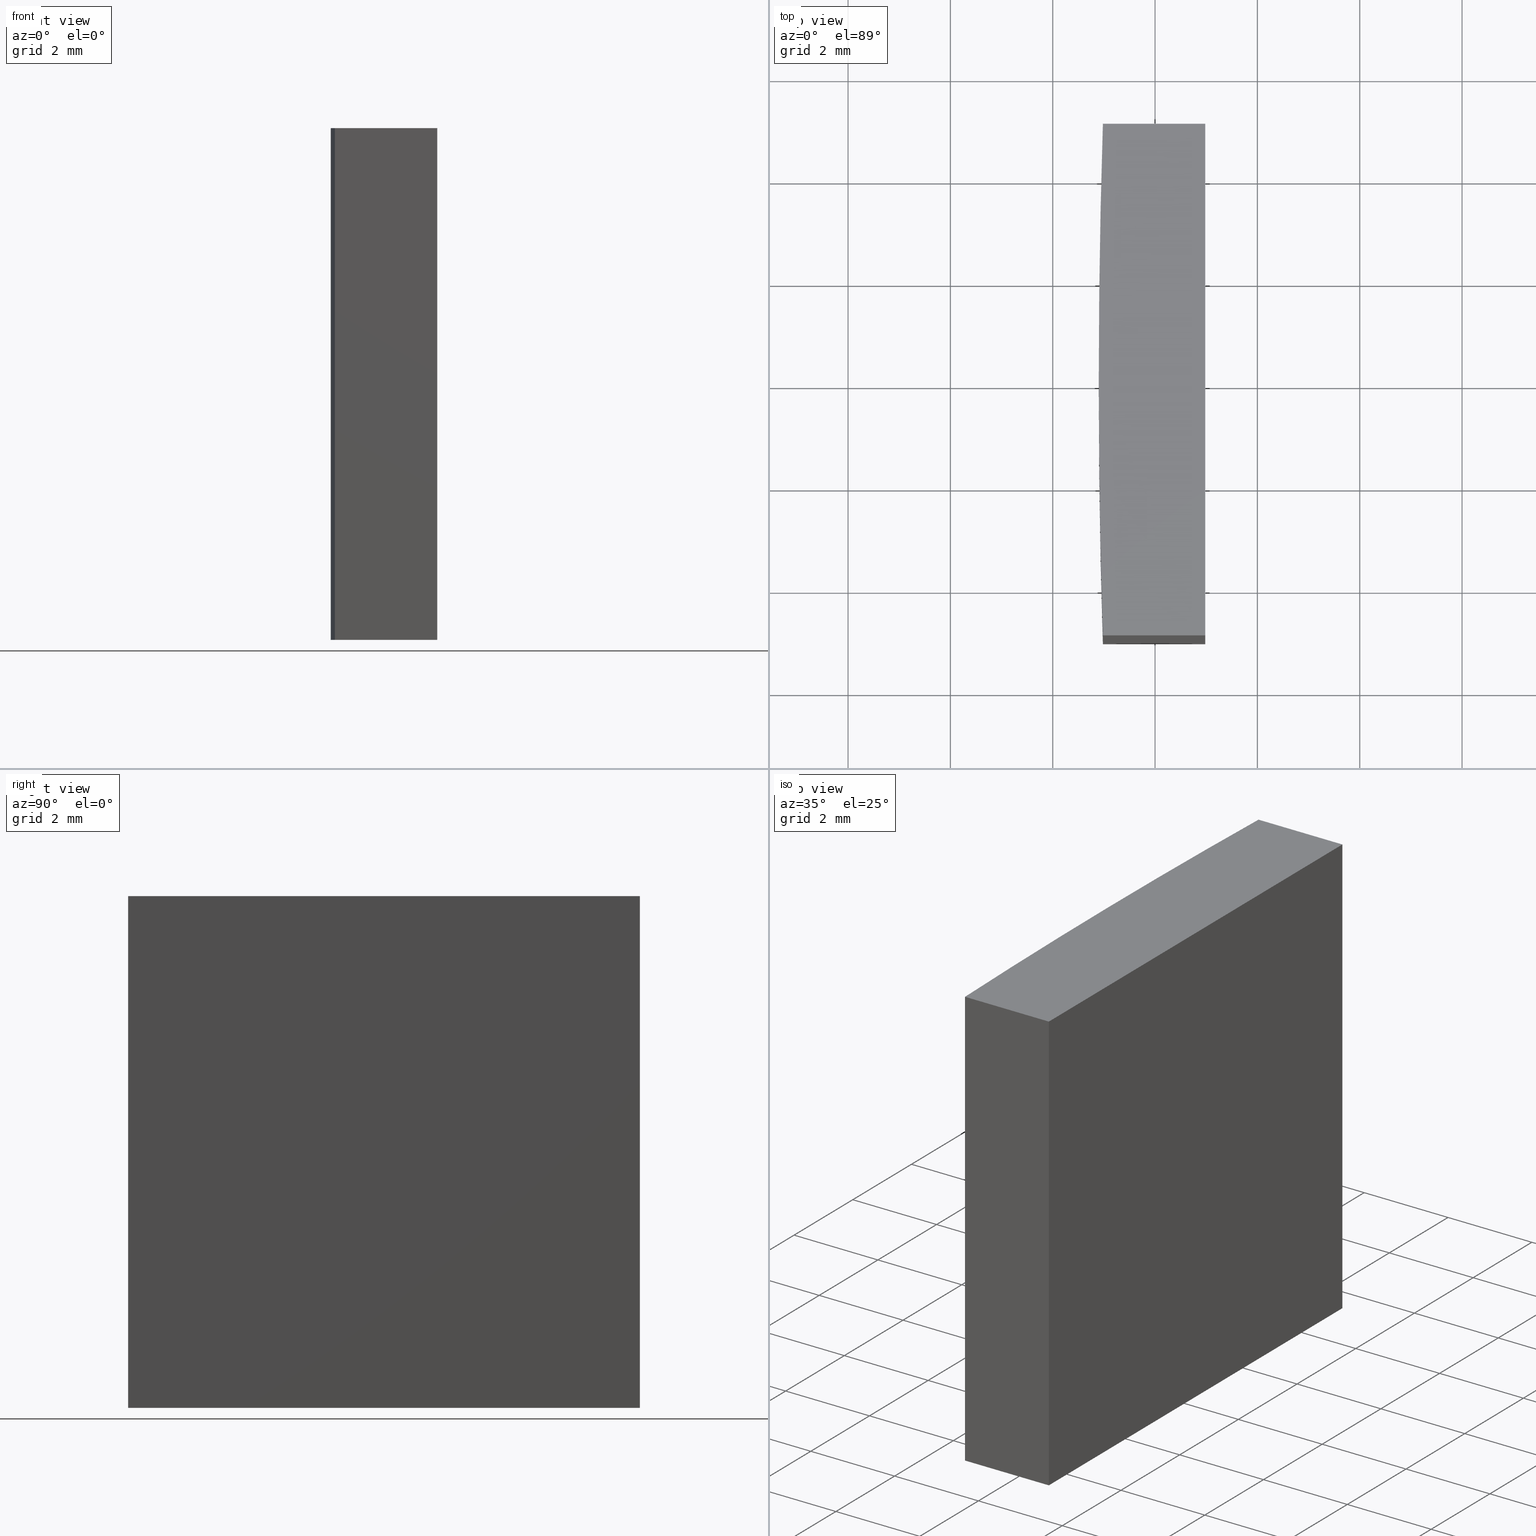
[diagram: canonical four-view strip — front | top / right | iso, engineering-drawing reading convention]
A machine part, canonical four-view strip (front | top / right | iso — engineering-drawing reading convention). The complete STEP part file that produces these views, byte-faithful:
ISO-10303-21;
HEADER;
FILE_DESCRIPTION (( 'STEP AP203' ),
    '1' );
FILE_NAME ('155526.STEP',
    '2024-05-13T03:26:28',
    ( '' ),
    ( '' ),
    'SwSTEP 2.0',
    'SolidWorks 2020',
    '' );
FILE_SCHEMA (( 'CONFIG_CONTROL_DESIGN' ));
ENDSEC;

DATA;
#1 = CYLINDRICAL_SURFACE ( 'NONE', #130, 155.0999999999999943 ) ;
#2 = DIRECTION ( 'NONE',  ( -1.000000000000000000, 0.000000000000000000, 0.000000000000000000 ) ) ;
#3 = VECTOR ( 'NONE', #138, 1000.000000000000000 ) ;
#4 = ORIENTED_EDGE ( 'NONE', *, *, #199, .T. ) ;
#5 = EDGE_CURVE ( 'NONE', #11, #133, #135, .T. ) ;
#6 = ORIENTED_EDGE ( 'NONE', *, *, #97, .F. ) ;
#7 = APPROVAL_DATE_TIME ( #192, #50 ) ;
#8 = PRODUCT_DEFINITION_FORMATION_WITH_SPECIFIED_SOURCE ( '�κ�', '', #28, .NOT_KNOWN. ) ;
#9 = PERSON_AND_ORGANIZATION ( #123, #144 ) ;
#10 = CC_DESIGN_PERSON_AND_ORGANIZATION_ASSIGNMENT ( #29, #33, ( #8 ) ) ;
#11 = VERTEX_POINT ( 'NONE', #204 ) ;
#12 = LINE ( 'NONE', #114, #46 ) ;
#13 = LOCAL_TIME ( 11, 26, 28.00000000000000000, #26 ) ;
#14 = CYLINDRICAL_SURFACE ( 'NONE', #121, 155.0999999999999943 ) ;
#15 = ADVANCED_FACE ( 'NONE', ( #17 ), #157, .T. ) ;
#16 = DIRECTION ( 'NONE',  ( -0.000000000000000000, -0.000000000000000000, -1.000000000000000000 ) ) ;
#17 = FACE_OUTER_BOUND ( 'NONE', #236, .T. ) ;
#18 = CARTESIAN_POINT ( 'NONE',  ( -153.0193858844757244, 5.000000000000000000, 0.000000000000000000 ) ) ;
#19 = AXIS2_PLACEMENT_3D ( 'NONE', #56, #265, #142 ) ;
#20 = CARTESIAN_POINT ( 'NONE',  ( -155.0193858844757244, -5.000000000000000000, 10.00000000000000000 ) ) ;
#21 = CARTESIAN_POINT ( 'NONE',  ( -153.0193858844757244, 5.000000000000000000, 10.00000000000000000 ) ) ;
#22 = VECTOR ( 'NONE', #105, 1000.000000000000000 ) ;
#23 = EDGE_CURVE ( 'NONE', #11, #87, #180, .T. ) ;
#24 = FACE_OUTER_BOUND ( 'NONE', #30, .T. ) ;
#25 =( LENGTH_UNIT ( ) NAMED_UNIT ( * ) SI_UNIT ( .MILLI., .METRE. ) );
#26 = COORDINATED_UNIVERSAL_TIME_OFFSET ( 8, 0, .AHEAD. ) ;
#27 = ORIENTED_EDGE ( 'NONE', *, *, #102, .F. ) ;
#28 = PRODUCT ( '155526', '155526', '', ( #126 ) ) ;
#29 = PERSON_AND_ORGANIZATION ( #123, #144 ) ;
#30 = EDGE_LOOP ( 'NONE', ( #172, #69, #91, #234 ) ) ;
#31 = PERSON_AND_ORGANIZATION_ROLE ( 'classification_officer' ) ;
#32 = ORIENTED_EDGE ( 'NONE', *, *, #55, .T. ) ;
#33 = PERSON_AND_ORGANIZATION_ROLE ( 'design_supplier' ) ;
#34 = AXIS2_PLACEMENT_3D ( 'NONE', #100, #239, #221 ) ;
#35 = ORIENTED_EDGE ( 'NONE', *, *, #55, .F. ) ;
#36 = DIRECTION ( 'NONE',  ( 1.000000000000000000, 0.000000000000000000, -0.000000000000000000 ) ) ;
#37 = LINE ( 'NONE', #18, #106 ) ;
#38 = CARTESIAN_POINT ( 'NONE',  ( 0.000000000000000000, 0.000000000000000000, 10.00000000000000000 ) ) ;
#39 = LINE ( 'NONE', #118, #201 ) ;
#40 = DIRECTION ( 'NONE',  ( 1.000000000000000000, 0.000000000000000000, 0.000000000000000000 ) ) ;
#41 = CALENDAR_DATE ( 2024, 13, 5 ) ;
#42 = AXIS2_PLACEMENT_3D ( 'NONE', #95, #245, #222 ) ;
#43 = LINE ( 'NONE', #249, #22 ) ;
#44 = ADVANCED_FACE ( 'NONE', ( #200 ), #136, .F. ) ;
#45 = ORIENTED_EDGE ( 'NONE', *, *, #268, .T. ) ;
#46 = VECTOR ( 'NONE', #16, 1000.000000000000000 ) ;
#47 = APPROVAL_STATUS ( 'not_yet_approved' ) ;
#48 = APPROVAL_ROLE ( '' ) ;
#49 = ORIENTED_EDGE ( 'NONE', *, *, #97, .T. ) ;
#50 = APPROVAL ( #47, 'δָ��' ) ;
#51 = COORDINATED_UNIVERSAL_TIME_OFFSET ( 8, 0, .AHEAD. ) ;
#52 = ORIENTED_EDGE ( 'NONE', *, *, #117, .F. ) ;
#53 = VECTOR ( 'NONE', #70, 1000.000000000000000 ) ;
#54 = DIRECTION ( 'NONE',  ( -0.000000000000000000, 1.000000000000000000, -0.000000000000000000 ) ) ;
#55 = EDGE_CURVE ( 'NONE', #133, #67, #99, .T. ) ;
#56 = CARTESIAN_POINT ( 'NONE',  ( 0.000000000000000000, 0.000000000000000000, 10.00000000000000000 ) ) ;
#57 = DIRECTION ( 'NONE',  ( 0.000000000000000000, 0.000000000000000000, 1.000000000000000000 ) ) ;
#58 = CC_DESIGN_APPROVAL ( #81, ( #166 ) ) ;
#59 = CARTESIAN_POINT ( 'NONE',  ( -155.0193858844757244, -5.000000000000000000, 0.000000000000000000 ) ) ;
#60 = DIRECTION ( 'NONE',  ( -1.000000000000000000, -0.000000000000000000, -0.000000000000000000 ) ) ;
#61 = DIRECTION ( 'NONE',  ( -0.000000000000000000, -0.000000000000000000, -1.000000000000000000 ) ) ;
#62 = AXIS2_PLACEMENT_3D ( 'NONE', #110, #178, #76 ) ;
#63 = COORDINATED_UNIVERSAL_TIME_OFFSET ( 8, 0, .AHEAD. ) ;
#64 = CARTESIAN_POINT ( 'NONE',  ( -153.0193858844757244, 5.000000000000000000, 10.00000000000000000 ) ) ;
#65 = APPROVAL_ROLE ( '' ) ;
#66 = PERSON_AND_ORGANIZATION ( #123, #144 ) ;
#67 = VERTEX_POINT ( 'NONE', #98 ) ;
#68 = ORIENTED_EDGE ( 'NONE', *, *, #86, .T. ) ;
#69 = ORIENTED_EDGE ( 'NONE', *, *, #251, .F. ) ;
#70 = DIRECTION ( 'NONE',  ( -0.000000000000000000, -0.000000000000000000, -1.000000000000000000 ) ) ;
#71 = DIRECTION ( 'NONE',  ( -0.000000000000000000, -0.000000000000000000, -1.000000000000000000 ) ) ;
#72 = DIRECTION ( 'NONE',  ( 0.000000000000000000, -0.000000000000000000, -1.000000000000000000 ) ) ;
#73 = VECTOR ( 'NONE', #220, 1000.000000000000000 ) ;
#74 = CARTESIAN_POINT ( 'NONE',  ( -155.0193858844757244, -5.000000000000000000, 10.00000000000000000 ) ) ;
#75 = APPLICATION_CONTEXT ( 'configuration controlled 3d designs of mechanical parts and assemblies' ) ;
#76 = DIRECTION ( 'NONE',  ( 1.000000000000000000, 0.000000000000000000, 0.000000000000000000 ) ) ;
#77 = APPROVAL_DATE_TIME ( #127, #81 ) ;
#78 = ADVANCED_FACE ( 'NONE', ( #267 ), #163, .F. ) ;
#79 = APPLICATION_PROTOCOL_DEFINITION ( 'international standard', 'config_control_design', 1994, #75 ) ;
#80 = CARTESIAN_POINT ( 'NONE',  ( -153.0193858844757244, 5.000000000000000000, 0.000000000000000000 ) ) ;
#81 = APPROVAL ( #252, 'δָ��' ) ;
#82 = PRODUCT_DEFINITION_SHAPE ( 'NONE', 'NONE',  #166 ) ;
#83 =( NAMED_UNIT ( * ) SI_UNIT ( $, .STERADIAN. ) SOLID_ANGLE_UNIT ( ) );
#84 = ORIENTED_EDGE ( 'NONE', *, *, #186, .F. ) ;
#85 = ORIENTED_EDGE ( 'NONE', *, *, #102, .T. ) ;
#86 = EDGE_CURVE ( 'NONE', #67, #107, #202, .T. ) ;
#87 = VERTEX_POINT ( 'NONE', #272 ) ;
#88 = AXIS2_PLACEMENT_3D ( 'NONE', #209, #250, #146 ) ;
#89 = CC_DESIGN_APPROVAL ( #203, ( #8 ) ) ;
#90 = DATE_AND_TIME ( #108, #13 ) ;
#91 = ORIENTED_EDGE ( 'NONE', *, *, #268, .F. ) ;
#92 = EDGE_LOOP ( 'NONE', ( #35, #175, #256, #169 ) ) ;
#93 = ADVANCED_FACE ( 'NONE', ( #113 ), #14, .T. ) ;
#94 = CARTESIAN_POINT ( 'NONE',  ( -155.0193858844757244, 5.000000000000000000, 10.00000000000000000 ) ) ;
#95 = CARTESIAN_POINT ( 'NONE',  ( 0.000000000000000000, 0.000000000000000000, 0.000000000000000000 ) ) ;
#96 = FACE_OUTER_BOUND ( 'NONE', #193, .T. ) ;
#97 = EDGE_CURVE ( 'NONE', #233, #11, #176, .T. ) ;
#98 = CARTESIAN_POINT ( 'NONE',  ( -155.0193858844757244, -5.000000000000000000, 10.00000000000000000 ) ) ;
#99 = CIRCLE ( 'NONE', #206, 155.0999999999999943 ) ;
#100 = CARTESIAN_POINT ( 'NONE',  ( 0.000000000000000000, 0.000000000000000000, 0.000000000000000000 ) ) ;
#101 = PERSON_AND_ORGANIZATION ( #123, #144 ) ;
#102 = EDGE_CURVE ( 'NONE', #87, #217, #115, .T. ) ;
#103 = DIRECTION ( 'NONE',  ( 0.000000000000000000, -0.000000000000000000, 1.000000000000000000 ) ) ;
#104 = LINE ( 'NONE', #212, #242 ) ;
#105 = DIRECTION ( 'NONE',  ( -0.000000000000000000, 1.000000000000000000, -0.000000000000000000 ) ) ;
#106 = VECTOR ( 'NONE', #54, 1000.000000000000000 ) ;
#107 = VERTEX_POINT ( 'NONE', #59 ) ;
#108 = CALENDAR_DATE ( 2024, 13, 5 ) ;
#109 = ORIENTED_EDGE ( 'NONE', *, *, #177, .F. ) ;
#110 = CARTESIAN_POINT ( 'NONE',  ( 0.000000000000000000, 0.000000000000000000, 10.00000000000000000 ) ) ;
#111 = CC_DESIGN_PERSON_AND_ORGANIZATION_ASSIGNMENT ( #216, #171, ( #8 ) ) ;
#112 = EDGE_LOOP ( 'NONE', ( #27, #197, #109, #52, #134 ) ) ;
#113 = FACE_OUTER_BOUND ( 'NONE', #92, .T. ) ;
#114 = CARTESIAN_POINT ( 'NONE',  ( -155.0999999999999943, 0.000000000000000000, 10.00000000000000000 ) ) ;
#115 = CIRCLE ( 'NONE', #42, 155.0999999999999943 ) ;
#116 = CARTESIAN_POINT ( 'NONE',  ( -155.0999999999999943, 0.000000000000000000, 10.00000000000000000 ) ) ;
#117 = EDGE_CURVE ( 'NONE', #107, #153, #224, .T. ) ;
#118 = CARTESIAN_POINT ( 'NONE',  ( -155.0193858844757244, 5.000000000000000000, 0.000000000000000000 ) ) ;
#119 = DIRECTION ( 'NONE',  ( -1.000000000000000000, 0.000000000000000000, 0.000000000000000000 ) ) ;
#120 = APPLICATION_CONTEXT ( 'configuration controlled 3d designs of mechanical parts and assemblies' ) ;
#121 = AXIS2_PLACEMENT_3D ( 'NONE', #241, #71, #119 ) ;
#122 = PLANE ( 'NONE',  #218 ) ;
#123 = PERSON ( 'δָ��', 'δָ��', 'δָ��', ('δָ��'), ('δָ��'), ('δָ��') ) ;
#124 = DIRECTION ( 'NONE',  ( 0.000000000000000000, 1.000000000000000000, 0.000000000000000000 ) ) ;
#125 = LOCAL_TIME ( 11, 26, 28.00000000000000000, #63 ) ;
#126 = MECHANICAL_CONTEXT ( 'NONE', #75, 'mechanical' ) ;
#127 = DATE_AND_TIME ( #273, #140 ) ;
#128 = ORIENTED_EDGE ( 'NONE', *, *, #117, .T. ) ;
#129 = CALENDAR_DATE ( 2024, 13, 5 ) ;
#130 = AXIS2_PLACEMENT_3D ( 'NONE', #211, #226, #2 ) ;
#131 = EDGE_CURVE ( 'NONE', #219, #153, #198, .T. ) ;
#132 = ORIENTED_EDGE ( 'NONE', *, *, #23, .T. ) ;
#133 = VERTEX_POINT ( 'NONE', #116 ) ;
#134 = ORIENTED_EDGE ( 'NONE', *, *, #139, .F. ) ;
#135 = CIRCLE ( 'NONE', #62, 155.0999999999999943 ) ;
#136 = PLANE ( 'NONE',  #223 ) ;
#137 = CARTESIAN_POINT ( 'NONE',  ( -155.0193858844757244, 5.000000000000000000, 10.00000000000000000 ) ) ;
#138 = DIRECTION ( 'NONE',  ( -1.000000000000000000, -0.000000000000000000, -0.000000000000000000 ) ) ;
#139 = EDGE_CURVE ( 'NONE', #217, #107, #155, .T. ) ;
#140 = LOCAL_TIME ( 11, 26, 28.00000000000000000, #231 ) ;
#141 = DIRECTION ( 'NONE',  ( 0.000000000000000000, 0.000000000000000000, 1.000000000000000000 ) ) ;
#142 = DIRECTION ( 'NONE',  ( 1.000000000000000000, 0.000000000000000000, -0.000000000000000000 ) ) ;
#143 = CC_DESIGN_PERSON_AND_ORGANIZATION_ASSIGNMENT ( #164, #247, ( #166 ) ) ;
#144 = ORGANIZATION ( 'δָ��', 'δָ��', '' ) ;
#145 = DIRECTION ( 'NONE',  ( -1.000000000000000000, 0.000000000000000000, 0.000000000000000000 ) ) ;
#146 = DIRECTION ( 'NONE',  ( 1.000000000000000000, 0.000000000000000000, 0.000000000000000000 ) ) ;
#147 = CC_DESIGN_PERSON_AND_ORGANIZATION_ASSIGNMENT ( #66, #31, ( #187 ) ) ;
#148 = CC_DESIGN_SECURITY_CLASSIFICATION ( #187, ( #8 ) ) ;
#149 = COORDINATED_UNIVERSAL_TIME_OFFSET ( 8, 0, .AHEAD. ) ;
#150 = ORIENTED_EDGE ( 'NONE', *, *, #251, .T. ) ;
#151 = ORIENTED_EDGE ( 'NONE', *, *, #23, .F. ) ;
#152 = EDGE_LOOP ( 'NONE', ( #84, #154, #132, #85 ) ) ;
#153 = VERTEX_POINT ( 'NONE', #161 ) ;
#154 = ORIENTED_EDGE ( 'NONE', *, *, #5, .F. ) ;
#155 = CIRCLE ( 'NONE', #34, 155.0999999999999943 ) ;
#156 = CARTESIAN_POINT ( 'NONE',  ( -155.0193858844757244, -5.000000000000000000, 0.000000000000000000 ) ) ;
#157 = PLANE ( 'NONE',  #19 ) ;
#158 = CARTESIAN_POINT ( 'NONE',  ( 0.000000000000000000, 0.000000000000000000, 0.000000000000000000 ) ) ;
#159 = APPROVAL_PERSON_ORGANIZATION ( #9, #203, #48 ) ;
#160 = CC_DESIGN_APPROVAL ( #50, ( #187 ) ) ;
#161 = CARTESIAN_POINT ( 'NONE',  ( -153.0193858844757244, -5.000000000000000000, 0.000000000000000000 ) ) ;
#162 = EDGE_CURVE ( 'NONE', #214, #87, #39, .T. ) ;
#163 = PLANE ( 'NONE',  #227 ) ;
#164 = PERSON_AND_ORGANIZATION ( #123, #144 ) ;
#165 = DIRECTION ( 'NONE',  ( 1.000000000000000000, 0.000000000000000000, 0.000000000000000000 ) ) ;
#166 = PRODUCT_DEFINITION ( 'δ֪', '', #8, #258 ) ;
#167 = APPLICATION_PROTOCOL_DEFINITION ( 'international standard', 'config_control_design', 1994, #120 ) ;
#168 = CLOSED_SHELL ( 'NONE', ( #93, #257, #190, #243, #78, #15, #44 ) ) ;
#169 = ORIENTED_EDGE ( 'NONE', *, *, #86, .F. ) ;
#170 = ORIENTED_EDGE ( 'NONE', *, *, #5, .T. ) ;
#171 = PERSON_AND_ORGANIZATION_ROLE ( 'creator' ) ;
#172 = ORIENTED_EDGE ( 'NONE', *, *, #177, .T. ) ;
#173 = LOCAL_TIME ( 11, 26, 28.00000000000000000, #51 ) ;
#174 = CALENDAR_DATE ( 2024, 13, 5 ) ;
#175 = ORIENTED_EDGE ( 'NONE', *, *, #186, .T. ) ;
#176 = LINE ( 'NONE', #270, #3 ) ;
#177 = EDGE_CURVE ( 'NONE', #153, #214, #37, .T. ) ;
#178 = DIRECTION ( 'NONE',  ( 0.000000000000000000, 0.000000000000000000, 1.000000000000000000 ) ) ;
#179 = PLANE ( 'NONE',  #210 ) ;
#180 = LINE ( 'NONE', #94, #271 ) ;
#181 = DIRECTION ( 'NONE',  ( 1.000000000000000000, 0.000000000000000000, 0.000000000000000000 ) ) ;
#182 = ADVANCED_BREP_SHAPE_REPRESENTATION ( '155526', ( #184, #88 ), #264 ) ;
#183 = PERSON_AND_ORGANIZATION ( #123, #144 ) ;
#184 = MANIFOLD_SOLID_BREP ( '͹̨-����1', #168 ) ;
#185 = FACE_OUTER_BOUND ( 'NONE', #152, .T. ) ;
#186 = EDGE_CURVE ( 'NONE', #133, #217, #12, .T. ) ;
#187 = SECURITY_CLASSIFICATION ( '', '', #237 ) ;
#188 = PERSON_AND_ORGANIZATION_ROLE ( 'design_owner' ) ;
#189 =( NAMED_UNIT ( * ) PLANE_ANGLE_UNIT ( ) SI_UNIT ( $, .RADIAN. ) );
#190 = ADVANCED_FACE ( 'NONE', ( #96 ), #179, .F. ) ;
#191 = VECTOR ( 'NONE', #165, 1000.000000000000000 ) ;
#192 = DATE_AND_TIME ( #174, #173 ) ;
#193 = EDGE_LOOP ( 'NONE', ( #128, #261, #263, #68 ) ) ;
#194 = APPROVAL_ROLE ( '' ) ;
#195 = CC_DESIGN_DATE_AND_TIME_ASSIGNMENT ( #208, #196, ( #166 ) ) ;
#196 = DATE_TIME_ROLE ( 'creation_date' ) ;
#197 = ORIENTED_EDGE ( 'NONE', *, *, #162, .F. ) ;
#198 = LINE ( 'NONE', #205, #73 ) ;
#199 = EDGE_CURVE ( 'NONE', #67, #219, #228, .T. ) ;
#200 = FACE_OUTER_BOUND ( 'NONE', #112, .T. ) ;
#201 = VECTOR ( 'NONE', #60, 1000.000000000000000 ) ;
#202 = LINE ( 'NONE', #74, #53 ) ;
#203 = APPROVAL ( #213, 'δָ��' ) ;
#204 = CARTESIAN_POINT ( 'NONE',  ( -155.0193858844757244, 5.000000000000000000, 10.00000000000000000 ) ) ;
#205 = CARTESIAN_POINT ( 'NONE',  ( -153.0193858844757244, -5.000000000000000000, 10.00000000000000000 ) ) ;
#206 = AXIS2_PLACEMENT_3D ( 'NONE', #38, #141, #181 ) ;
#207 = CARTESIAN_POINT ( 'NONE',  ( -153.0193858844757244, -5.000000000000000000, 10.00000000000000000 ) ) ;
#208 = DATE_AND_TIME ( #41, #125 ) ;
#209 = CARTESIAN_POINT ( 'NONE',  ( 0.000000000000000000, 0.000000000000000000, 0.000000000000000000 ) ) ;
#210 = AXIS2_PLACEMENT_3D ( 'NONE', #269, #124, #103 ) ;
#211 = CARTESIAN_POINT ( 'NONE',  ( 0.000000000000000000, 0.000000000000000000, 10.00000000000000000 ) ) ;
#212 = CARTESIAN_POINT ( 'NONE',  ( -153.0193858844757244, 5.000000000000000000, 10.00000000000000000 ) ) ;
#213 = APPROVAL_STATUS ( 'not_yet_approved' ) ;
#214 = VERTEX_POINT ( 'NONE', #80 ) ;
#215 = CC_DESIGN_PERSON_AND_ORGANIZATION_ASSIGNMENT ( #101, #188, ( #28 ) ) ;
#216 = PERSON_AND_ORGANIZATION ( #123, #144 ) ;
#217 = VERTEX_POINT ( 'NONE', #229 ) ;
#218 = AXIS2_PLACEMENT_3D ( 'NONE', #64, #145, #230 ) ;
#219 = VERTEX_POINT ( 'NONE', #207 ) ;
#220 = DIRECTION ( 'NONE',  ( -0.000000000000000000, -0.000000000000000000, -1.000000000000000000 ) ) ;
#221 = DIRECTION ( 'NONE',  ( 1.000000000000000000, 0.000000000000000000, 0.000000000000000000 ) ) ;
#222 = DIRECTION ( 'NONE',  ( 1.000000000000000000, 0.000000000000000000, 0.000000000000000000 ) ) ;
#223 = AXIS2_PLACEMENT_3D ( 'NONE', #158, #57, #36 ) ;
#224 = LINE ( 'NONE', #156, #248 ) ;
#225 = DIRECTION ( 'NONE',  ( 0.000000000000000000, -1.000000000000000000, 0.000000000000000000 ) ) ;
#226 = DIRECTION ( 'NONE',  ( -0.000000000000000000, -0.000000000000000000, -1.000000000000000000 ) ) ;
#227 = AXIS2_PLACEMENT_3D ( 'NONE', #137, #225, #72 ) ;
#228 = LINE ( 'NONE', #20, #191 ) ;
#229 = CARTESIAN_POINT ( 'NONE',  ( -155.0999999999999943, 0.000000000000000000, 0.000000000000000000 ) ) ;
#230 = DIRECTION ( 'NONE',  ( 0.000000000000000000, 0.000000000000000000, 1.000000000000000000 ) ) ;
#231 = COORDINATED_UNIVERSAL_TIME_OFFSET ( 8, 0, .AHEAD. ) ;
#232 = DATE_TIME_ROLE ( 'classification_date' ) ;
#233 = VERTEX_POINT ( 'NONE', #21 ) ;
#234 = ORIENTED_EDGE ( 'NONE', *, *, #131, .T. ) ;
#235 = DATE_AND_TIME ( #129, #253 ) ;
#236 = EDGE_LOOP ( 'NONE', ( #170, #32, #4, #45, #49 ) ) ;
#237 = SECURITY_CLASSIFICATION_LEVEL ( 'unclassified' ) ;
#238 = ORIENTED_EDGE ( 'NONE', *, *, #162, .T. ) ;
#239 = DIRECTION ( 'NONE',  ( 0.000000000000000000, 0.000000000000000000, 1.000000000000000000 ) ) ;
#240 = DIRECTION ( 'NONE',  ( -0.000000000000000000, -0.000000000000000000, -1.000000000000000000 ) ) ;
#241 = CARTESIAN_POINT ( 'NONE',  ( 0.000000000000000000, 0.000000000000000000, 10.00000000000000000 ) ) ;
#242 = VECTOR ( 'NONE', #61, 1000.000000000000000 ) ;
#243 = ADVANCED_FACE ( 'NONE', ( #24 ), #122, .F. ) ;
#244 = APPROVAL_PERSON_ORGANIZATION ( #255, #50, #194 ) ;
#245 = DIRECTION ( 'NONE',  ( 0.000000000000000000, 0.000000000000000000, 1.000000000000000000 ) ) ;
#246 = CC_DESIGN_DATE_AND_TIME_ASSIGNMENT ( #90, #232, ( #187 ) ) ;
#247 = PERSON_AND_ORGANIZATION_ROLE ( 'creator' ) ;
#248 = VECTOR ( 'NONE', #40, 1000.000000000000000 ) ;
#249 = CARTESIAN_POINT ( 'NONE',  ( -153.0193858844757244, 5.000000000000000000, 10.00000000000000000 ) ) ;
#250 = DIRECTION ( 'NONE',  ( 0.000000000000000000, 0.000000000000000000, 1.000000000000000000 ) ) ;
#251 = EDGE_CURVE ( 'NONE', #233, #214, #104, .T. ) ;
#252 = APPROVAL_STATUS ( 'not_yet_approved' ) ;
#253 = LOCAL_TIME ( 11, 26, 28.00000000000000000, #149 ) ;
#254 = APPROVAL_DATE_TIME ( #235, #203 ) ;
#255 = PERSON_AND_ORGANIZATION ( #123, #144 ) ;
#256 = ORIENTED_EDGE ( 'NONE', *, *, #139, .T. ) ;
#257 = ADVANCED_FACE ( 'NONE', ( #185 ), #1, .T. ) ;
#258 = DESIGN_CONTEXT ( 'detailed design', #120, 'design' ) ;
#259 = SHAPE_DEFINITION_REPRESENTATION ( #82, #182 ) ;
#260 = EDGE_LOOP ( 'NONE', ( #238, #151, #6, #150 ) ) ;
#261 = ORIENTED_EDGE ( 'NONE', *, *, #131, .F. ) ;
#262 = PRODUCT_RELATED_PRODUCT_CATEGORY ( 'detail', '', ( #28 ) ) ;
#263 = ORIENTED_EDGE ( 'NONE', *, *, #199, .F. ) ;
#264 =( GEOMETRIC_REPRESENTATION_CONTEXT ( 3 ) GLOBAL_UNCERTAINTY_ASSIGNED_CONTEXT ( ( #266 ) ) GLOBAL_UNIT_ASSIGNED_CONTEXT ( ( #25, #189, #83 ) ) REPRESENTATION_CONTEXT ( 'NONE', 'WORKASPACE' ) );
#265 = DIRECTION ( 'NONE',  ( 0.000000000000000000, 0.000000000000000000, 1.000000000000000000 ) ) ;
#266 = UNCERTAINTY_MEASURE_WITH_UNIT (LENGTH_MEASURE( 1.000000000000000082E-05 ), #25, 'distance_accuracy_value', 'NONE');
#267 = FACE_OUTER_BOUND ( 'NONE', #260, .T. ) ;
#268 = EDGE_CURVE ( 'NONE', #219, #233, #43, .T. ) ;
#269 = CARTESIAN_POINT ( 'NONE',  ( -155.0193858844757244, -5.000000000000000000, 10.00000000000000000 ) ) ;
#270 = CARTESIAN_POINT ( 'NONE',  ( -155.0193858844757244, 5.000000000000000000, 10.00000000000000000 ) ) ;
#271 = VECTOR ( 'NONE', #240, 1000.000000000000000 ) ;
#272 = CARTESIAN_POINT ( 'NONE',  ( -155.0193858844757244, 5.000000000000000000, 0.000000000000000000 ) ) ;
#273 = CALENDAR_DATE ( 2024, 13, 5 ) ;
#274 = APPROVAL_PERSON_ORGANIZATION ( #183, #81, #65 ) ;
ENDSEC;
END-ISO-10303-21;
